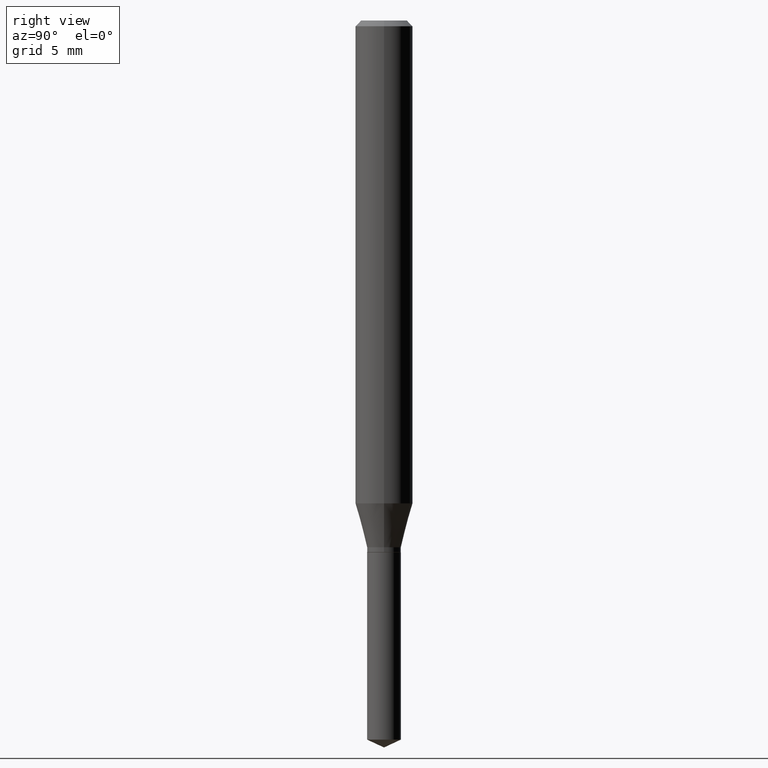
[diagram: clean part render]
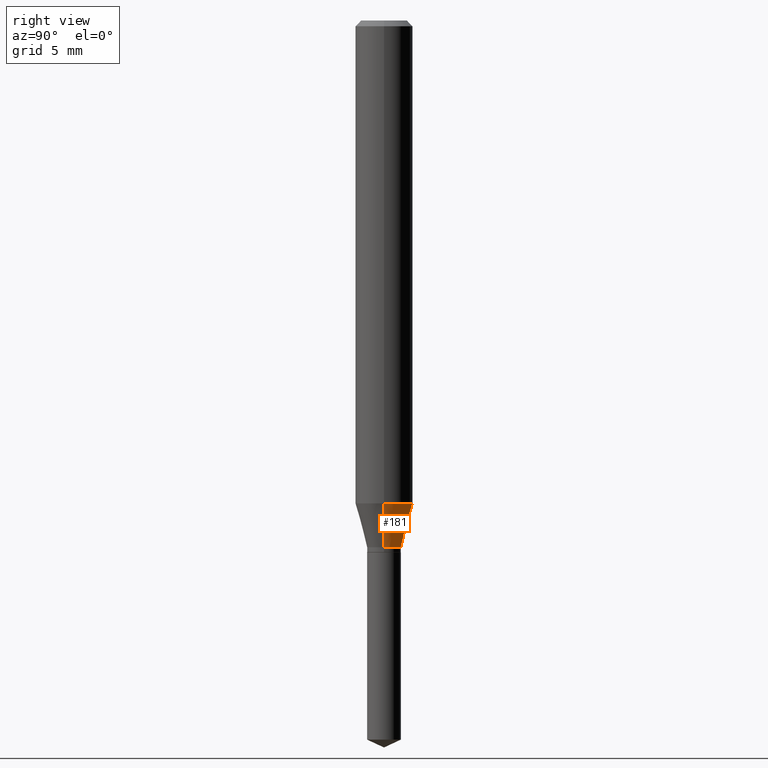
[diagram: same view with one face highlighted and labeled with its STEP entity id]
A machine part, right view. The second image highlights one B-rep face of the part: STEP entity #181.
In plain terms, the highlighted conical surface has half-angle 15 deg.
Its self-contained STEP definition (entity closure, byte-faithful):
#20 = CARTESIAN_POINT ( 'NONE',  ( 2.650888185904688008E-29, -3.784765771305969621E-15, -1.084000000000000075 ) ) ;
#32 = VECTOR ( 'NONE', #183, 39.37007874015748854 ) ;
#49 = AXIS2_PLACEMENT_3D ( 'NONE', #110, #116, #351 ) ;
#53 = VERTEX_POINT ( 'NONE', #420 ) ;
#59 = ORIENTED_EDGE ( 'NONE', *, *, #280, .T. ) ;
#93 = LINE ( 'NONE', #202, #316 ) ;
#110 = CARTESIAN_POINT ( 'NONE',  ( 2.650888185904688008E-29, -3.784765771305969621E-15, -1.084000000000000075 ) ) ;
#116 = DIRECTION ( 'NONE',  ( -2.445468806185136597E-29, 3.491481338843145583E-15, 1.000000000000000000 ) ) ;
#120 = CIRCLE ( 'NONE', #463, 0.05905000000000011628 ) ;
#151 = EDGE_CURVE ( 'NONE', #162, #53, #93, .T. ) ;
#162 = VERTEX_POINT ( 'NONE', #272 ) ;
#181 = ADVANCED_FACE ( 'NONE', ( #266 ), #365, .T. ) ;
#183 = DIRECTION ( 'NONE',  ( 0.2588190451025211281, 1.565188264969622954E-15, 0.9659258262890679791 ) ) ;
#202 = CARTESIAN_POINT ( 'NONE',  ( -0.03484999999999999903, -3.537141627893574762E-15, -1.084000000000000075 ) ) ;
#221 = LINE ( 'NONE', #367, #32 ) ;
#224 = ORIENTED_EDGE ( 'NONE', *, *, #237, .F. ) ;
#237 = EDGE_CURVE ( 'NONE', #311, #53, #120, .T. ) ;
#239 = EDGE_LOOP ( 'NONE', ( #59, #358, #224, #438 ) ) ;
#253 = CIRCLE ( 'NONE', #49, 0.03484999999999999903 ) ;
#266 = FACE_OUTER_BOUND ( 'NONE', #239, .T. ) ;
#272 = CARTESIAN_POINT ( 'NONE',  ( -0.03484999999999999903, -3.554599034587790192E-15, -1.084000000000000075 ) ) ;
#280 = EDGE_CURVE ( 'NONE', #450, #162, #253, .T. ) ;
#286 = DIRECTION ( 'NONE',  ( -2.445468806185136597E-29, 3.491481338843145583E-15, 1.000000000000000000 ) ) ;
#293 = AXIS2_PLACEMENT_3D ( 'NONE', #20, #393, #427 ) ;
#311 = VERTEX_POINT ( 'NONE', #352 ) ;
#315 = DIRECTION ( 'NONE',  ( 1.000000000000000000, -6.982962677686266711E-15, 0.000000000000000000 ) ) ;
#316 = VECTOR ( 'NONE', #429, 39.37007874015748854 ) ;
#348 = EDGE_CURVE ( 'NONE', #450, #311, #221, .T. ) ;
#351 = DIRECTION ( 'NONE',  ( 1.000000000000000000, -6.982962677686261977E-15, 0.000000000000000000 ) ) ;
#352 = CARTESIAN_POINT ( 'NONE',  ( 0.05905000000000011628, -3.881774382267505696E-15, -0.9936843704568328883 ) ) ;
#358 = ORIENTED_EDGE ( 'NONE', *, *, #151, .T. ) ;
#365 = CONICAL_SURFACE ( 'NONE', #293, 0.03484999999999999903, 0.2617993877991498519 ) ;
#367 = CARTESIAN_POINT ( 'NONE',  ( 0.03484999999999999903, -4.028122020623335896E-15, -1.084000000000000075 ) ) ;
#393 = DIRECTION ( 'NONE',  ( -2.445468806185136597E-29, 3.491481338843145583E-15, 1.000000000000000000 ) ) ;
#420 = CARTESIAN_POINT ( 'NONE',  ( -0.05905000000000011628, -3.049854950683790888E-15, -0.9936843704568328883 ) ) ;
#425 = CARTESIAN_POINT ( 'NONE',  ( 2.430024131145899834E-29, -3.469430436150130776E-15, -0.9936843704568328883 ) ) ;
#427 = DIRECTION ( 'NONE',  ( 1.000000000000000000, -6.982962677686261977E-15, 0.000000000000000000 ) ) ;
#429 = DIRECTION ( 'NONE',  ( -0.2588190451025211281, 5.211531920934547886E-15, 0.9659258262890679791 ) ) ;
#438 = ORIENTED_EDGE ( 'NONE', *, *, #348, .F. ) ;
#450 = VERTEX_POINT ( 'NONE', #459 ) ;
#459 = CARTESIAN_POINT ( 'NONE',  ( 0.03484999999999999903, -4.028122020623335896E-15, -1.084000000000000075 ) ) ;
#463 = AXIS2_PLACEMENT_3D ( 'NONE', #425, #286, #315 ) ;